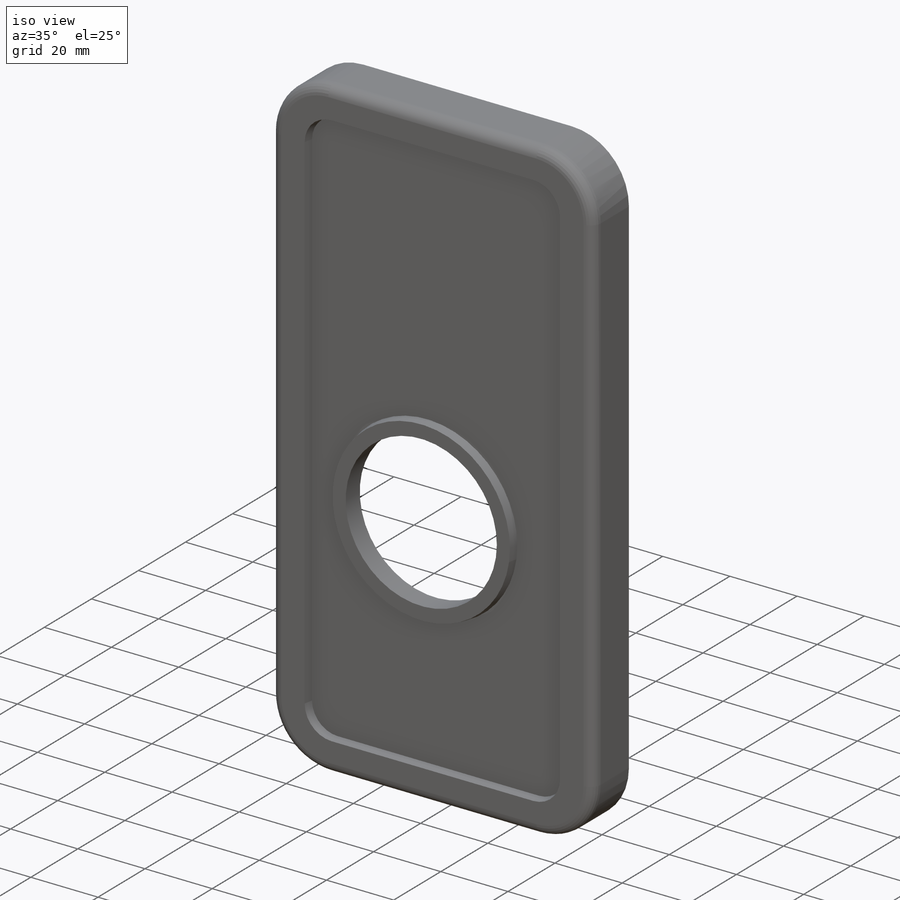
[diagram: iso view]
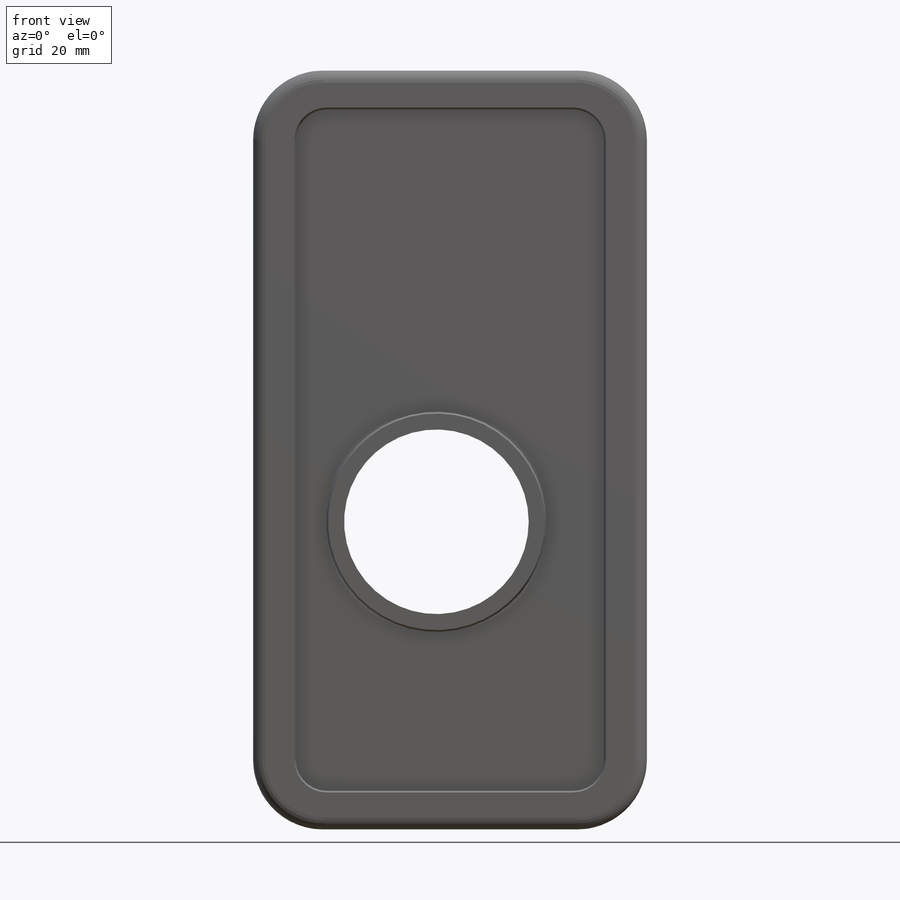
[diagram: front view]
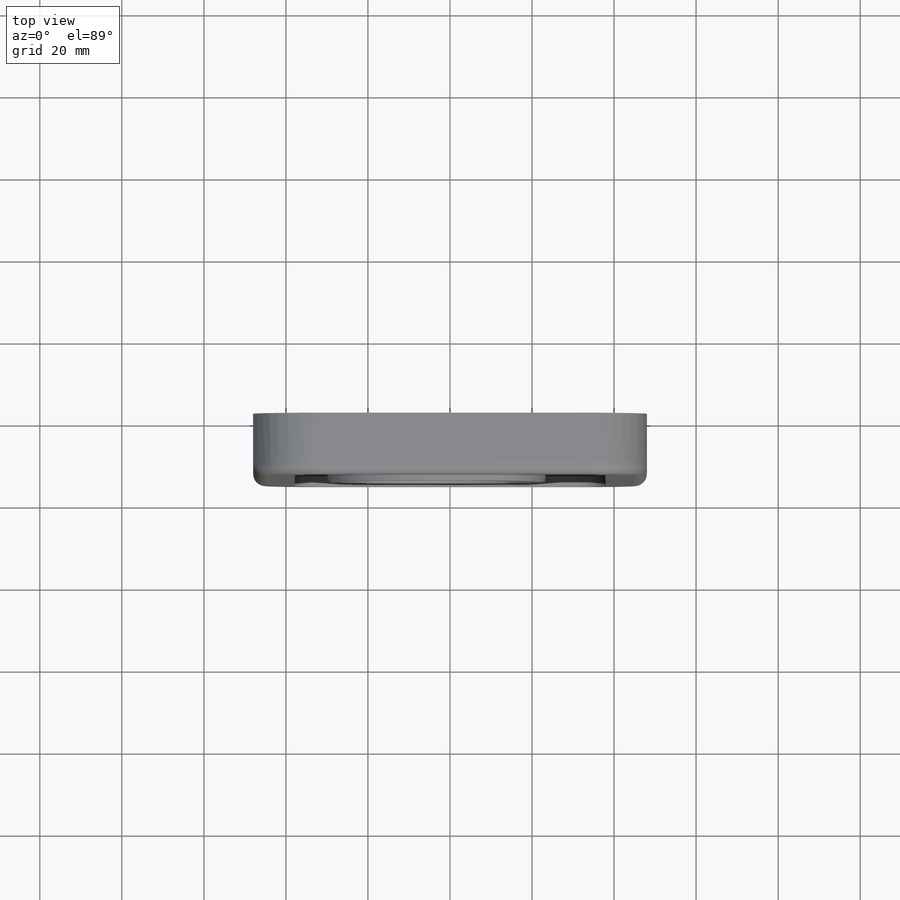
[diagram: top view]
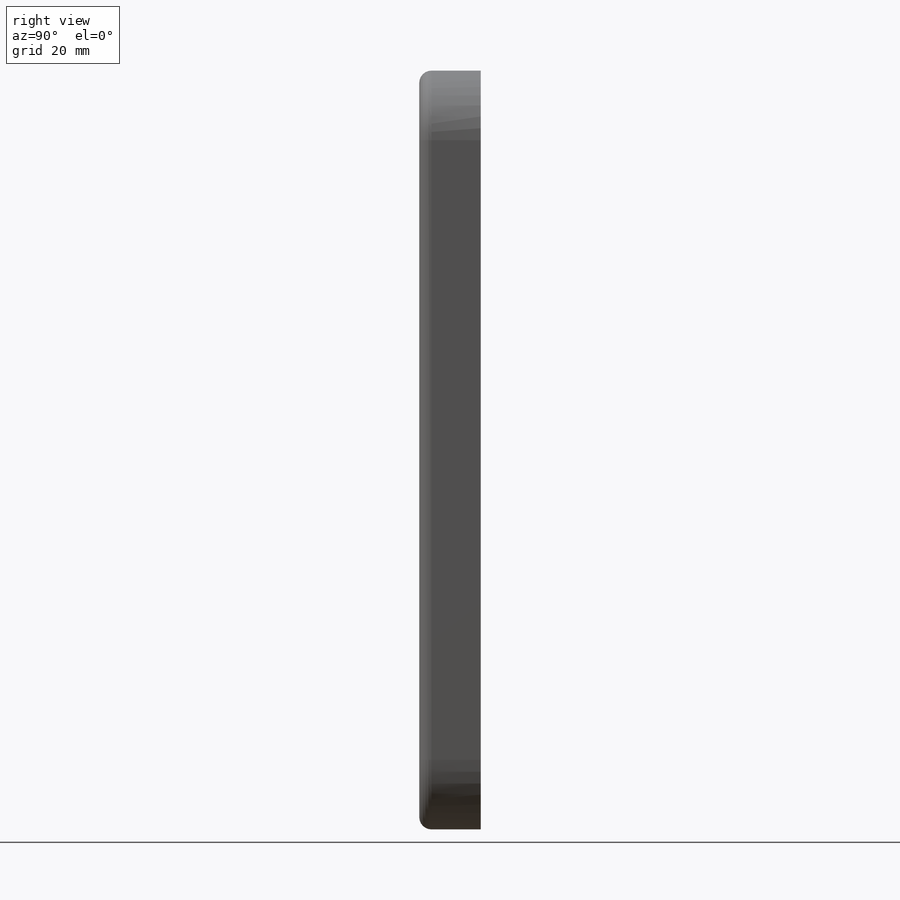
[diagram: right view]
SOLIDWORKS PART (.sldprt)
format: sldprt  version: not decoded by parser v0  size: 284,672 bytes
history: native  units: mm
features: sketch x4, plane x3, cut_extrude x3, material x1, extrude x1, fillet x1, shell x1 (+13 scaffold rows collapsed)
feature tree (27):
  scaffold x13  (default folders/planes/origin — collapsed)
  material  "2024-T4"
  plane  "Спереди"
  plane  "Сверху"
  plane  "Справа"
  sketch  "Эскиз1"  dims[D3=17.0mm D1=96.0mm D2=185.0mm]
  extrude  "Бобышка-Вытянуть1"  Depth=15mm
  sketch  "Эскиз2"  dims[c1.D1=~45.583782mm c1.D2=~45.583782mm c1.D3=45.0mm c2.D1=44.0mm c2.D2=75.0mm c3.D1=51.31mm c3.D2=75.0mm]
  cut_extrude  "Вырез-Вытянуть1"  [1 undecoded]
  sketch  "Эскиз3"  dims[D3=8.0mm D1=9.0mm D2=9.0mm]
  cut_extrude  "Вырез-Вытянуть2"  Depth=2.5mm
  fillet  "Скругление1"  Radius=3mm
  shell  "Оболочка1"  Thickness=3.5mm
  sketch  "Эскиз4"
  cut_extrude  "Вырез-Вытянуть3"  Depth=2mm
decode coverage: 8 of 10 modeling features carry decoded parameters
note: ~ marks probable driven/reference dimensions
note: 1 parameter value undecoded
note: suppression state not decoded; provenance and decode notes live in map.json
